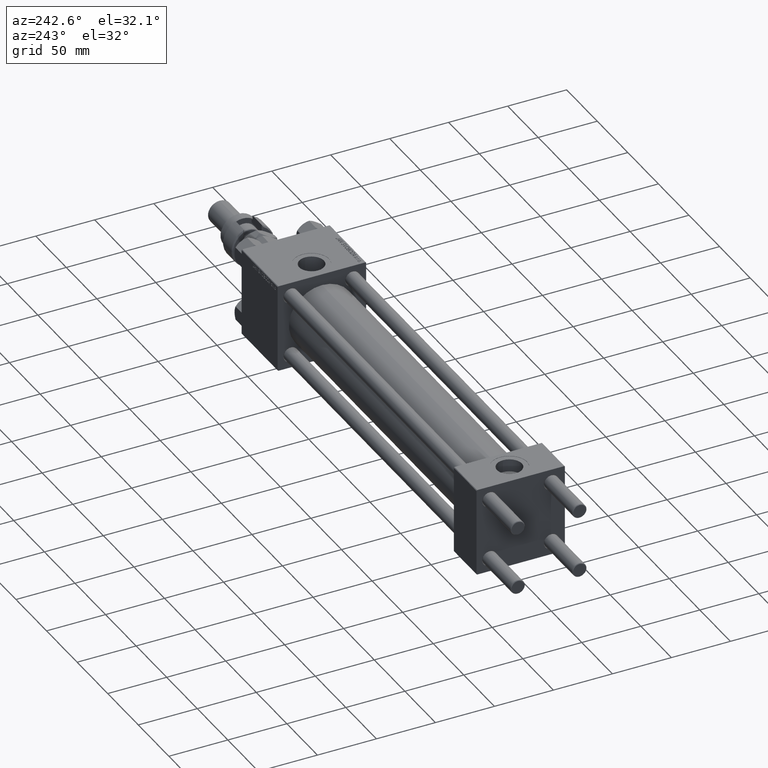
[diagram: clean part render]
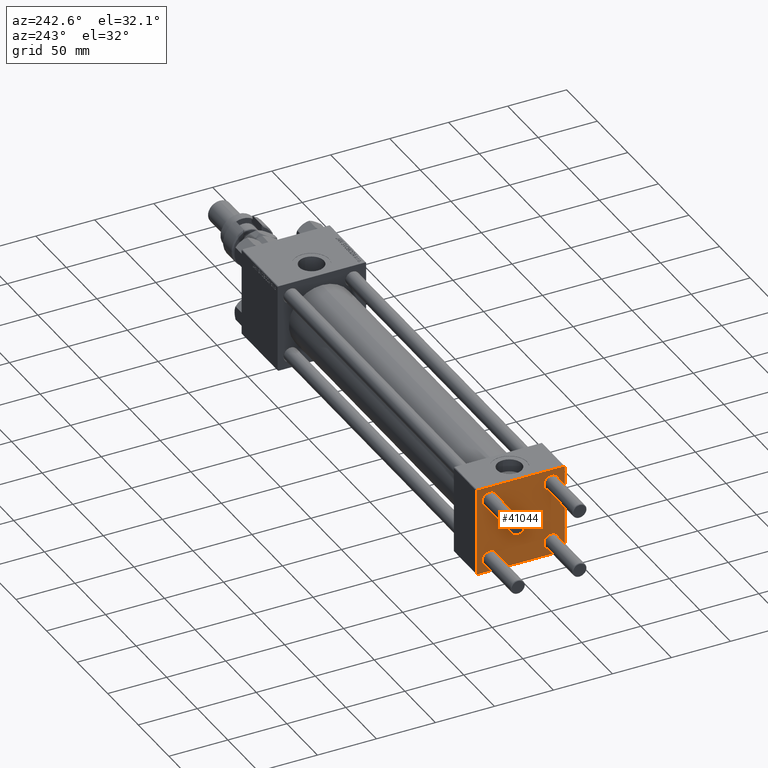
[diagram: same view with one face highlighted and labeled with its STEP entity id]
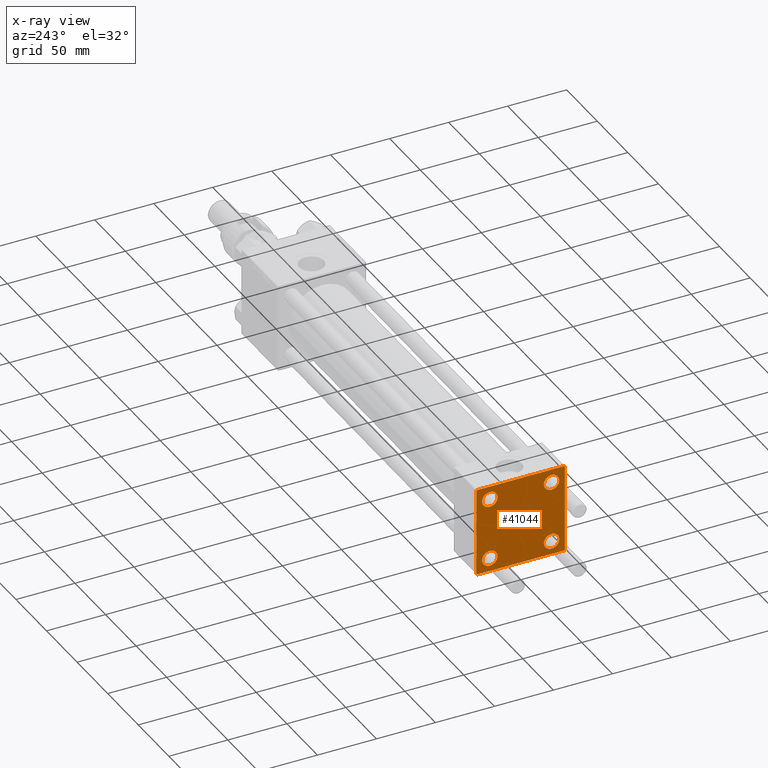
[diagram: x-ray of the same camera — body ghosted, the highlighted face saturated]
A machine part, auxiliary view. The second image highlights one B-rep face of the part: STEP entity #41044.
The next image is the same camera in x-ray: the body ghosted, the highlighted face saturated — about 0% of this face is hidden behind the body in this view.
In plain terms, the highlighted planar face has unit normal (-1, 0, 0).
Its self-contained STEP definition (entity closure, byte-faithful):
#873 = FACE_BOUND ( 'NONE', #31559, .T. ) ;
#1417 = FACE_BOUND ( 'NONE', #42688, .T. ) ;
#1569 = EDGE_CURVE ( 'NONE', #25270, #18548, #4879, .T. ) ;
#2043 = CARTESIAN_POINT ( 'NONE',  ( 0.000000000000000000, -26.14999999999999147, -19.64999999999999503 ) ) ;
#2156 = CARTESIAN_POINT ( 'NONE',  ( 0.000000000000000000, -26.14999999999999147, 19.64999999999999147 ) ) ;
#2578 = ORIENTED_EDGE ( 'NONE', *, *, #1569, .T. ) ;
#2801 = AXIS2_PLACEMENT_3D ( 'NONE', #26815, #21595, #17704 ) ;
#2968 = VERTEX_POINT ( 'NONE', #7701 ) ;
#3040 = CARTESIAN_POINT ( 'NONE',  ( 0.000000000000000000, -37.50000000000000000, -37.00000000000003553 ) ) ;
#3739 = CARTESIAN_POINT ( 'NONE',  ( 0.000000000000000000, 26.14999999999999858, -26.15000000000000213 ) ) ;
#4248 = CIRCLE ( 'NONE', #11328, 6.500000000000023093 ) ;
#4478 = CARTESIAN_POINT ( 'NONE',  ( -0.000000000000000000, -37.25000000000000000, 37.25000000000000000 ) ) ;
#4559 = EDGE_CURVE ( 'NONE', #44617, #37251, #36226, .T. ) ;
#4745 = PLANE ( 'NONE',  #2801 ) ;
#4879 = CIRCLE ( 'NONE', #26953, 6.500000000000023093 ) ;
#5917 = EDGE_CURVE ( 'NONE', #35683, #38920, #31542, .T. ) ;
#6430 = CARTESIAN_POINT ( 'NONE',  ( 0.000000000000000000, -26.14999999999999147, -32.65000000000002700 ) ) ;
#6933 = DIRECTION ( 'NONE',  ( 0.000000000000000000, 0.000000000000000000, -1.000000000000000000 ) ) ;
#6976 = ORIENTED_EDGE ( 'NONE', *, *, #11376, .T. ) ;
#7204 = CARTESIAN_POINT ( 'NONE',  ( 0.000000000000000000, 37.49999999999999289, 37.50000000000000000 ) ) ;
#7675 = DIRECTION ( 'NONE',  ( 0.000000000000000000, 0.7071067811865474617, -0.7071067811865474617 ) ) ;
#7701 = CARTESIAN_POINT ( 'NONE',  ( 0.000000000000000000, -37.50000000000000711, 36.99999999999999289 ) ) ;
#7815 = CARTESIAN_POINT ( 'NONE',  ( 0.000000000000000000, -37.50000000000000711, 37.49999999999999289 ) ) ;
#8419 = DIRECTION ( 'NONE',  ( 1.000000000000000000, -0.000000000000000000, 0.000000000000000000 ) ) ;
#8985 = VERTEX_POINT ( 'NONE', #54647 ) ;
#9275 = CIRCLE ( 'NONE', #33966, 6.500000000000015987 ) ;
#9541 = CARTESIAN_POINT ( 'NONE',  ( 0.000000000000000000, 36.99999999999999289, 37.50000000000000000 ) ) ;
#9661 = DIRECTION ( 'NONE',  ( 1.000000000000000000, -0.000000000000000000, 0.000000000000000000 ) ) ;
#9979 = FACE_OUTER_BOUND ( 'NONE', #41523, .T. ) ;
#10550 = DIRECTION ( 'NONE',  ( 0.000000000000000000, -1.000000000000000000, -9.251858538542972814E-17 ) ) ;
#10564 = CARTESIAN_POINT ( 'NONE',  ( 0.000000000000000000, 37.24999999999998579, -37.24999999999998579 ) ) ;
#10984 = EDGE_CURVE ( 'NONE', #8985, #44617, #47844, .T. ) ;
#11004 = DIRECTION ( 'NONE',  ( 1.000000000000000000, -0.000000000000000000, 0.000000000000000000 ) ) ;
#11328 = AXIS2_PLACEMENT_3D ( 'NONE', #25299, #45757, #20623 ) ;
#11376 = EDGE_CURVE ( 'NONE', #18548, #25270, #4248, .T. ) ;
#11676 = DIRECTION ( 'NONE',  ( 0.000000000000000000, 0.000000000000000000, 1.000000000000000000 ) ) ;
#11688 = DIRECTION ( 'NONE',  ( 0.000000000000000000, 9.251858538542971581E-17, -1.000000000000000000 ) ) ;
#11952 = CARTESIAN_POINT ( 'NONE',  ( 0.000000000000000000, -26.14999999999999147, -26.15000000000000924 ) ) ;
#12155 = AXIS2_PLACEMENT_3D ( 'NONE', #54589, #16731, #53496 ) ;
#12194 = EDGE_CURVE ( 'NONE', #34978, #19391, #34280, .T. ) ;
#12227 = CARTESIAN_POINT ( 'NONE',  ( 0.000000000000000000, 26.14999999999999858, -19.64999999999998792 ) ) ;
#12661 = ORIENTED_EDGE ( 'NONE', *, *, #18541, .F. ) ;
#13725 = CARTESIAN_POINT ( 'NONE',  ( 0.000000000000000000, -26.14999999999999147, 32.65000000000003411 ) ) ;
#14120 = FACE_BOUND ( 'NONE', #29989, .T. ) ;
#15132 = CARTESIAN_POINT ( 'NONE',  ( 0.000000000000000000, 37.24999999999999289, 37.24999999999999289 ) ) ;
#15405 = LINE ( 'NONE', #15132, #28309 ) ;
#15490 = LINE ( 'NONE', #32338, #45947 ) ;
#15767 = VERTEX_POINT ( 'NONE', #3040 ) ;
#16158 = DIRECTION ( 'NONE',  ( 0.000000000000000000, 0.000000000000000000, 1.000000000000000000 ) ) ;
#16287 = CARTESIAN_POINT ( 'NONE',  ( 0.000000000000000000, 37.49999999999999289, 37.50000000000000000 ) ) ;
#16731 = DIRECTION ( 'NONE',  ( 1.000000000000000000, -0.000000000000000000, 0.000000000000000000 ) ) ;
#17000 = ORIENTED_EDGE ( 'NONE', *, *, #23275, .T. ) ;
#17125 = CIRCLE ( 'NONE', #44468, 6.500000000000015987 ) ;
#17253 = VECTOR ( 'NONE', #6933, 1000.000000000000000 ) ;
#17362 = ORIENTED_EDGE ( 'NONE', *, *, #4559, .T. ) ;
#17704 = DIRECTION ( 'NONE',  ( -0.000000000000000000, 0.000000000000000000, 1.000000000000000000 ) ) ;
#18458 = ORIENTED_EDGE ( 'NONE', *, *, #52520, .T. ) ;
#18521 = AXIS2_PLACEMENT_3D ( 'NONE', #53526, #11004, #27848 ) ;
#18541 = EDGE_CURVE ( 'NONE', #2968, #15767, #37086, .T. ) ;
#18548 = VERTEX_POINT ( 'NONE', #33746 ) ;
#19391 = VERTEX_POINT ( 'NONE', #41307 ) ;
#19709 = EDGE_CURVE ( 'NONE', #2968, #24133, #42056, .T. ) ;
#20145 = VECTOR ( 'NONE', #27402, 1000.000000000000114 ) ;
#20231 = DIRECTION ( 'NONE',  ( 1.000000000000000000, -0.000000000000000000, 0.000000000000000000 ) ) ;
#20623 = DIRECTION ( 'NONE',  ( 0.000000000000000000, 0.000000000000000000, 1.000000000000000000 ) ) ;
#21595 = DIRECTION ( 'NONE',  ( -1.000000000000000000, 0.000000000000000000, -0.000000000000000000 ) ) ;
#21660 = CARTESIAN_POINT ( 'NONE',  ( 0.000000000000000000, 26.14999999999999858, 26.15000000000000213 ) ) ;
#22262 = EDGE_CURVE ( 'NONE', #38920, #35683, #52050, .T. ) ;
#23094 = ORIENTED_EDGE ( 'NONE', *, *, #35358, .F. ) ;
#23275 = EDGE_CURVE ( 'NONE', #37251, #15767, #15490, .T. ) ;
#24133 = VERTEX_POINT ( 'NONE', #42117 ) ;
#25270 = VERTEX_POINT ( 'NONE', #27941 ) ;
#25299 = CARTESIAN_POINT ( 'NONE',  ( 0.000000000000000000, 26.14999999999999858, 26.15000000000000213 ) ) ;
#25953 = CARTESIAN_POINT ( 'NONE',  ( 0.000000000000000000, 26.14999999999999858, -26.15000000000000213 ) ) ;
#26815 = CARTESIAN_POINT ( 'NONE',  ( 0.000000000000000000, 0.000000000000000000, 0.000000000000000000 ) ) ;
#26953 = AXIS2_PLACEMENT_3D ( 'NONE', #21660, #38503, #47606 ) ;
#27331 = EDGE_CURVE ( 'NONE', #47603, #45452, #15405, .T. ) ;
#27402 = DIRECTION ( 'NONE',  ( -0.000000000000000000, -0.7071067811865474617, -0.7071067811865474617 ) ) ;
#27848 = DIRECTION ( 'NONE',  ( 0.000000000000000000, 0.000000000000000000, 1.000000000000000000 ) ) ;
#27941 = CARTESIAN_POINT ( 'NONE',  ( 0.000000000000000000, 26.14999999999999858, 19.64999999999998437 ) ) ;
#28309 = VECTOR ( 'NONE', #7675, 1000.000000000000114 ) ;
#29534 = ORIENTED_EDGE ( 'NONE', *, *, #12194, .T. ) ;
#29989 = EDGE_LOOP ( 'NONE', ( #6976, #2578 ) ) ;
#31542 = CIRCLE ( 'NONE', #12155, 6.500000000000023093 ) ;
#31559 = EDGE_LOOP ( 'NONE', ( #50749, #40356 ) ) ;
#31944 = EDGE_CURVE ( 'NONE', #19391, #34978, #32023, .T. ) ;
#32023 = CIRCLE ( 'NONE', #43486, 6.500000000000015987 ) ;
#32110 = DIRECTION ( 'NONE',  ( 0.000000000000000000, 0.000000000000000000, 1.000000000000000000 ) ) ;
#32207 = CARTESIAN_POINT ( 'NONE',  ( 0.000000000000000000, 36.99999999999997868, -37.50000000000000000 ) ) ;
#32338 = CARTESIAN_POINT ( 'NONE',  ( 0.000000000000000000, -37.24999999999975842, -37.25000000000027001 ) ) ;
#32382 = DIRECTION ( 'NONE',  ( 1.000000000000000000, -0.000000000000000000, 0.000000000000000000 ) ) ;
#33357 = ORIENTED_EDGE ( 'NONE', *, *, #10984, .T. ) ;
#33746 = CARTESIAN_POINT ( 'NONE',  ( 0.000000000000000000, 26.14999999999999858, 32.65000000000002700 ) ) ;
#33966 = AXIS2_PLACEMENT_3D ( 'NONE', #11952, #32382, #11676 ) ;
#33976 = DIRECTION ( 'NONE',  ( 0.000000000000000000, 0.000000000000000000, 1.000000000000000000 ) ) ;
#34280 = CIRCLE ( 'NONE', #52798, 6.500000000000015987 ) ;
#34829 = VERTEX_POINT ( 'NONE', #6430 ) ;
#34978 = VERTEX_POINT ( 'NONE', #12227 ) ;
#35358 = EDGE_CURVE ( 'NONE', #47603, #24133, #41969, .T. ) ;
#35683 = VERTEX_POINT ( 'NONE', #2156 ) ;
#36051 = VECTOR ( 'NONE', #11688, 1000.000000000000000 ) ;
#36226 = LINE ( 'NONE', #40375, #52635 ) ;
#36378 = ORIENTED_EDGE ( 'NONE', *, *, #50585, .T. ) ;
#37086 = LINE ( 'NONE', #7815, #36051 ) ;
#37251 = VERTEX_POINT ( 'NONE', #50332 ) ;
#37287 = DIRECTION ( 'NONE',  ( 0.000000000000000000, -1.000000000000000000, -9.251858538542971581E-17 ) ) ;
#38402 = EDGE_CURVE ( 'NONE', #45452, #8985, #48913, .T. ) ;
#38503 = DIRECTION ( 'NONE',  ( 1.000000000000000000, -0.000000000000000000, 0.000000000000000000 ) ) ;
#38716 = VECTOR ( 'NONE', #45656, 1000.000000000000114 ) ;
#38920 = VERTEX_POINT ( 'NONE', #13725 ) ;
#39237 = VERTEX_POINT ( 'NONE', #2043 ) ;
#39251 = FACE_BOUND ( 'NONE', #53454, .T. ) ;
#40285 = ORIENTED_EDGE ( 'NONE', *, *, #31944, .T. ) ;
#40356 = ORIENTED_EDGE ( 'NONE', *, *, #5917, .T. ) ;
#40375 = CARTESIAN_POINT ( 'NONE',  ( 0.000000000000000000, 37.49999999999999289, -37.50000000000000000 ) ) ;
#40906 = DIRECTION ( 'NONE',  ( 0.000000000000000000, -0.7071067811865524577, 0.7071067811865426878 ) ) ;
#40953 = CARTESIAN_POINT ( 'NONE',  ( 0.000000000000000000, -26.14999999999999147, -26.15000000000000924 ) ) ;
#41044 = ADVANCED_FACE ( 'NONE', ( #873, #39251, #1417, #14120, #9979 ), #4745, .T. ) ;
#41307 = CARTESIAN_POINT ( 'NONE',  ( 0.000000000000000000, 26.14999999999999858, -32.65000000000001990 ) ) ;
#41523 = EDGE_LOOP ( 'NONE', ( #45917, #33357, #17362, #17000, #12661, #44350, #23094, #43099 ) ) ;
#41676 = CARTESIAN_POINT ( 'NONE',  ( 0.000000000000000000, 37.49999999999999289, 37.00000000000000000 ) ) ;
#41969 = LINE ( 'NONE', #16287, #42730 ) ;
#42056 = LINE ( 'NONE', #4478, #38716 ) ;
#42117 = CARTESIAN_POINT ( 'NONE',  ( 0.000000000000000000, -37.00000000000000711, 37.49999999999999289 ) ) ;
#42688 = EDGE_LOOP ( 'NONE', ( #29534, #40285 ) ) ;
#42730 = VECTOR ( 'NONE', #37287, 1000.000000000000000 ) ;
#43099 = ORIENTED_EDGE ( 'NONE', *, *, #27331, .T. ) ;
#43486 = AXIS2_PLACEMENT_3D ( 'NONE', #25953, #9661, #33976 ) ;
#44350 = ORIENTED_EDGE ( 'NONE', *, *, #19709, .T. ) ;
#44468 = AXIS2_PLACEMENT_3D ( 'NONE', #40953, #20231, #32110 ) ;
#44617 = VERTEX_POINT ( 'NONE', #32207 ) ;
#45452 = VERTEX_POINT ( 'NONE', #41676 ) ;
#45656 = DIRECTION ( 'NONE',  ( -0.000000000000000000, 0.7071067811865474617, 0.7071067811865474617 ) ) ;
#45757 = DIRECTION ( 'NONE',  ( 1.000000000000000000, -0.000000000000000000, 0.000000000000000000 ) ) ;
#45917 = ORIENTED_EDGE ( 'NONE', *, *, #38402, .T. ) ;
#45947 = VECTOR ( 'NONE', #40906, 1000.000000000000000 ) ;
#47603 = VERTEX_POINT ( 'NONE', #9541 ) ;
#47606 = DIRECTION ( 'NONE',  ( 0.000000000000000000, 0.000000000000000000, 1.000000000000000000 ) ) ;
#47844 = LINE ( 'NONE', #10564, #20145 ) ;
#48913 = LINE ( 'NONE', #7204, #17253 ) ;
#50332 = CARTESIAN_POINT ( 'NONE',  ( 0.000000000000000000, -37.00000000000002132, -37.50000000000000711 ) ) ;
#50585 = EDGE_CURVE ( 'NONE', #34829, #39237, #17125, .T. ) ;
#50749 = ORIENTED_EDGE ( 'NONE', *, *, #22262, .T. ) ;
#52050 = CIRCLE ( 'NONE', #18521, 6.500000000000023093 ) ;
#52520 = EDGE_CURVE ( 'NONE', #39237, #34829, #9275, .T. ) ;
#52635 = VECTOR ( 'NONE', #10550, 1000.000000000000000 ) ;
#52798 = AXIS2_PLACEMENT_3D ( 'NONE', #3739, #8419, #16158 ) ;
#53454 = EDGE_LOOP ( 'NONE', ( #18458, #36378 ) ) ;
#53496 = DIRECTION ( 'NONE',  ( 0.000000000000000000, 0.000000000000000000, 1.000000000000000000 ) ) ;
#53526 = CARTESIAN_POINT ( 'NONE',  ( 0.000000000000000000, -26.14999999999999147, 26.15000000000000924 ) ) ;
#54589 = CARTESIAN_POINT ( 'NONE',  ( 0.000000000000000000, -26.14999999999999147, 26.15000000000000924 ) ) ;
#54647 = CARTESIAN_POINT ( 'NONE',  ( 0.000000000000000000, 37.49999999999999289, -36.99999999999998579 ) ) ;